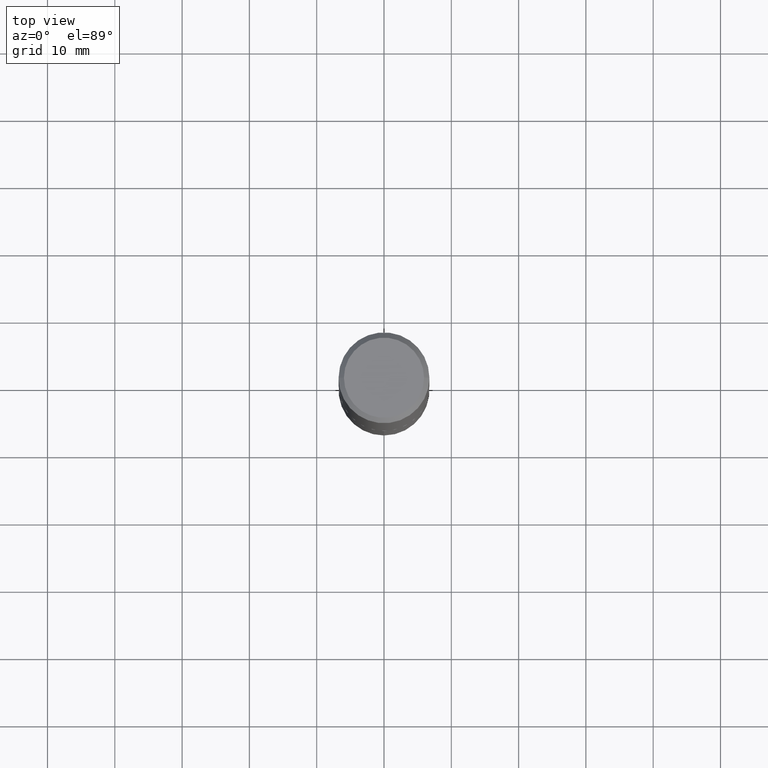
[diagram: clean part render]
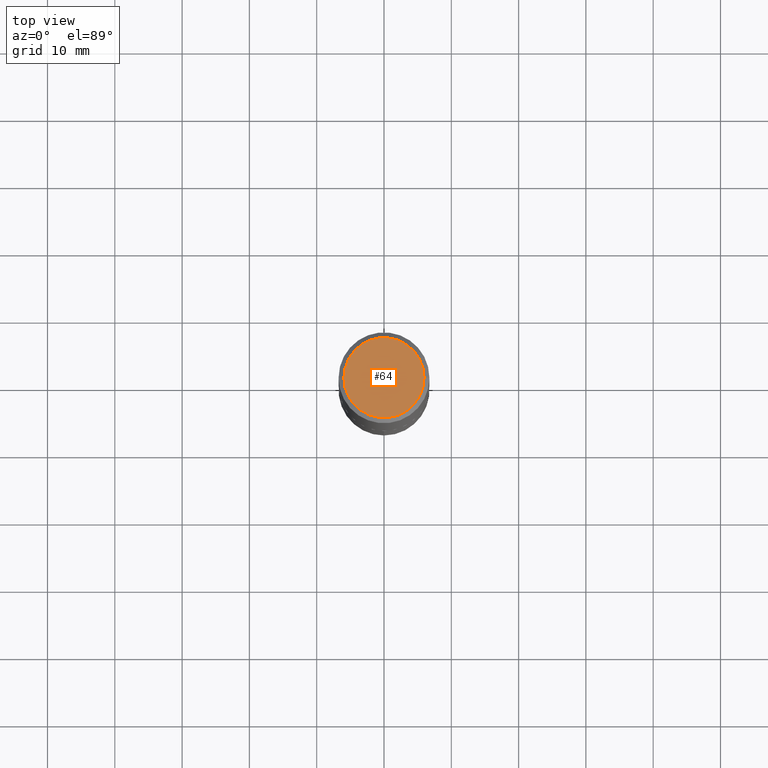
[diagram: same view with one face highlighted and labeled with its STEP entity id]
A machine part, top view. The second image highlights one B-rep face of the part: STEP entity #64.
In plain terms, the highlighted planar face has unit normal (0, -0, -1).
Its self-contained STEP definition (entity closure, byte-faithful):
#19 = VERTEX_POINT ( 'NONE', #151 ) ;
#29 = CARTESIAN_POINT ( 'NONE',  ( -1.175472951769406121E-47, 1.678263842514555526E-33, 4.806738686653342798E-19 ) ) ;
#64 = ADVANCED_FACE ( 'NONE', ( #261 ), #116, .F. ) ;
#70 = EDGE_CURVE ( 'NONE', #357, #19, #210, .T. ) ;
#79 = DIRECTION ( 'NONE',  ( 1.000000000000000000, -6.982962677686266711E-15, 4.876169155519525200E-29 ) ) ;
#89 = CARTESIAN_POINT ( 'NONE',  ( -2.350945903538812242E-47, 3.356527685029111051E-33, 9.613477373306685597E-19 ) ) ;
#92 = ORIENTED_EDGE ( 'NONE', *, *, #70, .T. ) ;
#107 = CARTESIAN_POINT ( 'NONE',  ( -2.350945903538812242E-47, 3.356527685029111051E-33, 9.613477373306685597E-19 ) ) ;
#110 = CARTESIAN_POINT ( 'NONE',  ( 0.2344999999999999862, -1.770536457612028720E-15, 9.613477373425848660E-19 ) ) ;
#116 = PLANE ( 'NONE',  #150 ) ;
#144 = DIRECTION ( 'NONE',  ( 2.438088387897960049E-29, -3.491481338843145188E-15, -1.000000000000000000 ) ) ;
#150 = AXIS2_PLACEMENT_3D ( 'NONE', #29, #144, #320 ) ;
#151 = CARTESIAN_POINT ( 'NONE',  ( -0.2344999999999999862, 1.692059143836852879E-15, 9.613477373190261206E-19 ) ) ;
#165 = EDGE_LOOP ( 'NONE', ( #355, #92 ) ) ;
#205 = DIRECTION ( 'NONE',  ( -2.445468806185136597E-29, 3.491481338843145583E-15, 1.000000000000000000 ) ) ;
#210 = CIRCLE ( 'NONE', #257, 0.2344999999999999862 ) ;
#257 = AXIS2_PLACEMENT_3D ( 'NONE', #89, #205, #323 ) ;
#261 = FACE_OUTER_BOUND ( 'NONE', #165, .T. ) ;
#306 = AXIS2_PLACEMENT_3D ( 'NONE', #107, #341, #79 ) ;
#320 = DIRECTION ( 'NONE',  ( -1.000000000000000000, 6.982962677686265922E-15, -4.876176775795935793E-29 ) ) ;
#323 = DIRECTION ( 'NONE',  ( 1.000000000000000000, -6.982962677686266711E-15, 4.876169155519525200E-29 ) ) ;
#330 = EDGE_CURVE ( 'NONE', #19, #357, #386, .T. ) ;
#341 = DIRECTION ( 'NONE',  ( -2.445468806185136597E-29, 3.491481338843145583E-15, 1.000000000000000000 ) ) ;
#355 = ORIENTED_EDGE ( 'NONE', *, *, #330, .T. ) ;
#357 = VERTEX_POINT ( 'NONE', #110 ) ;
#386 = CIRCLE ( 'NONE', #306, 0.2344999999999999862 ) ;